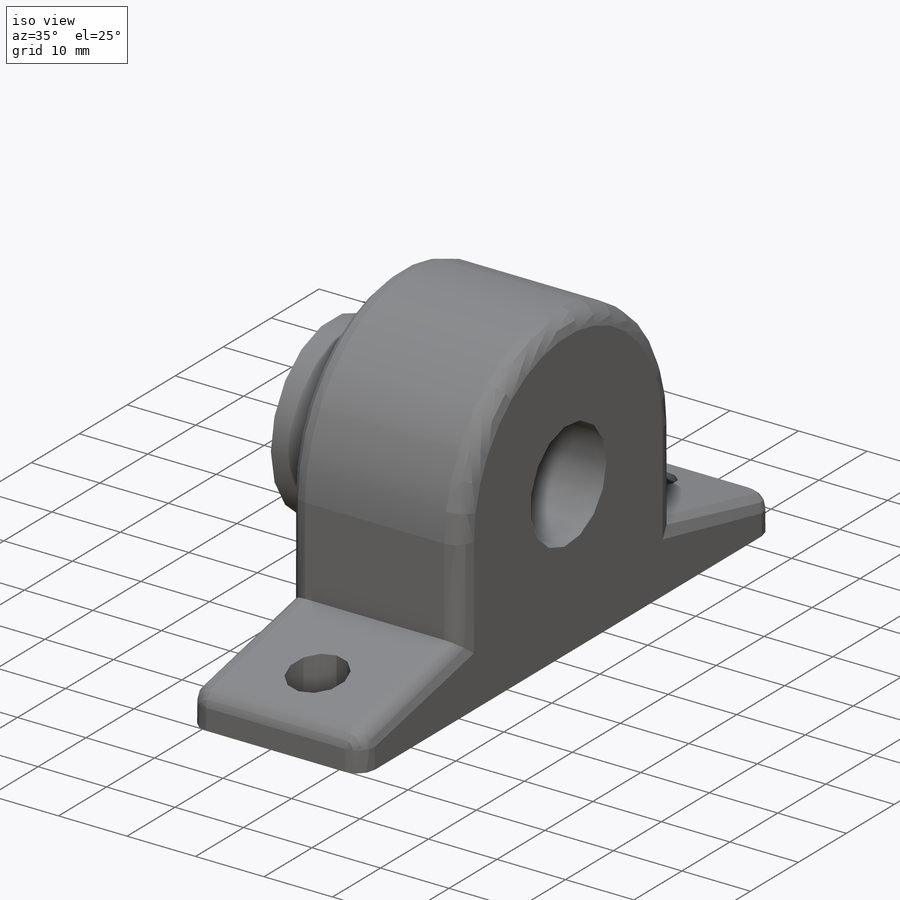
[diagram: iso view]
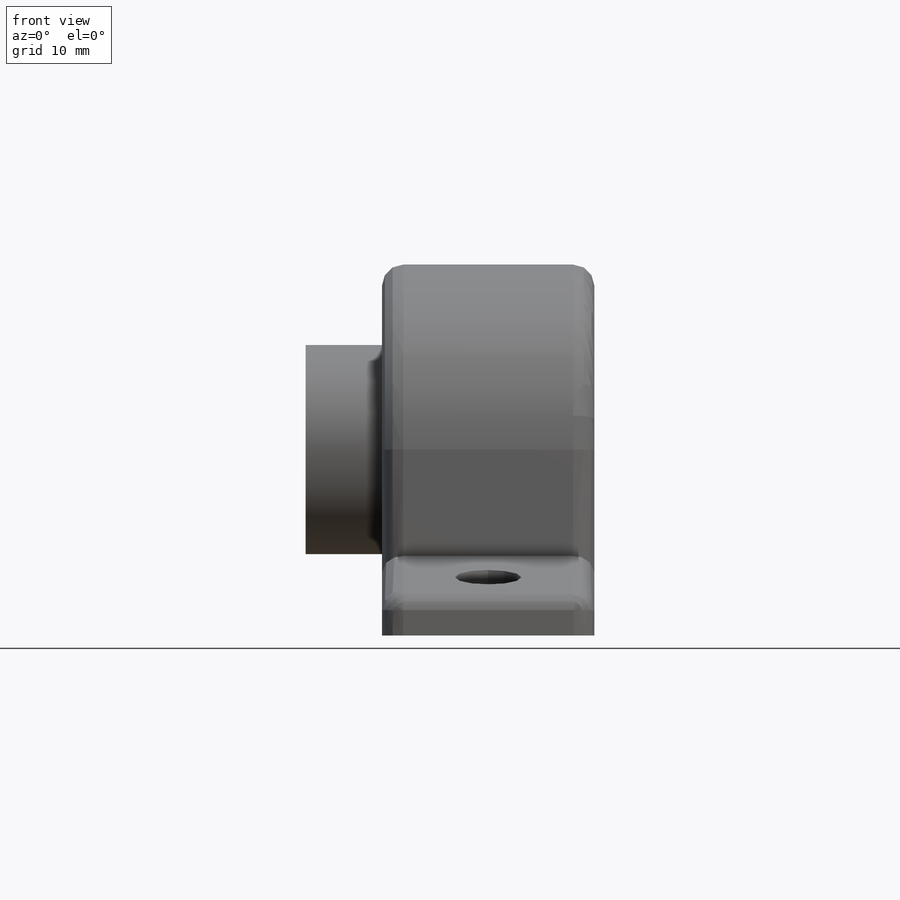
[diagram: front view]
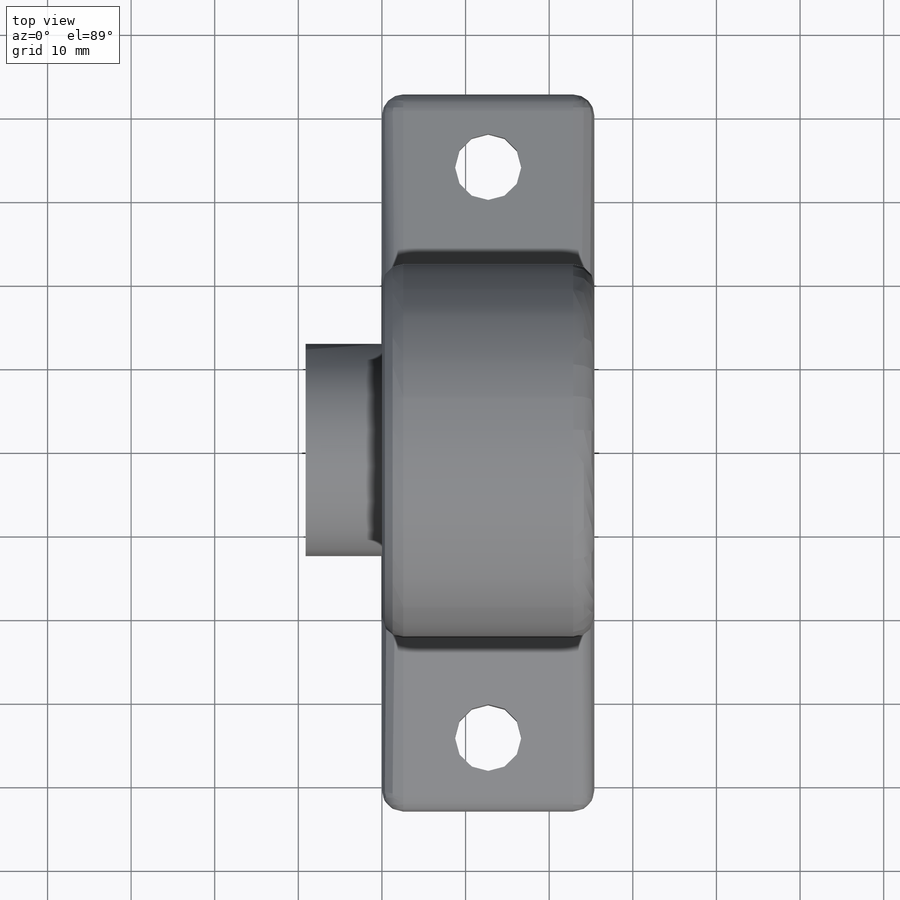
[diagram: top view]
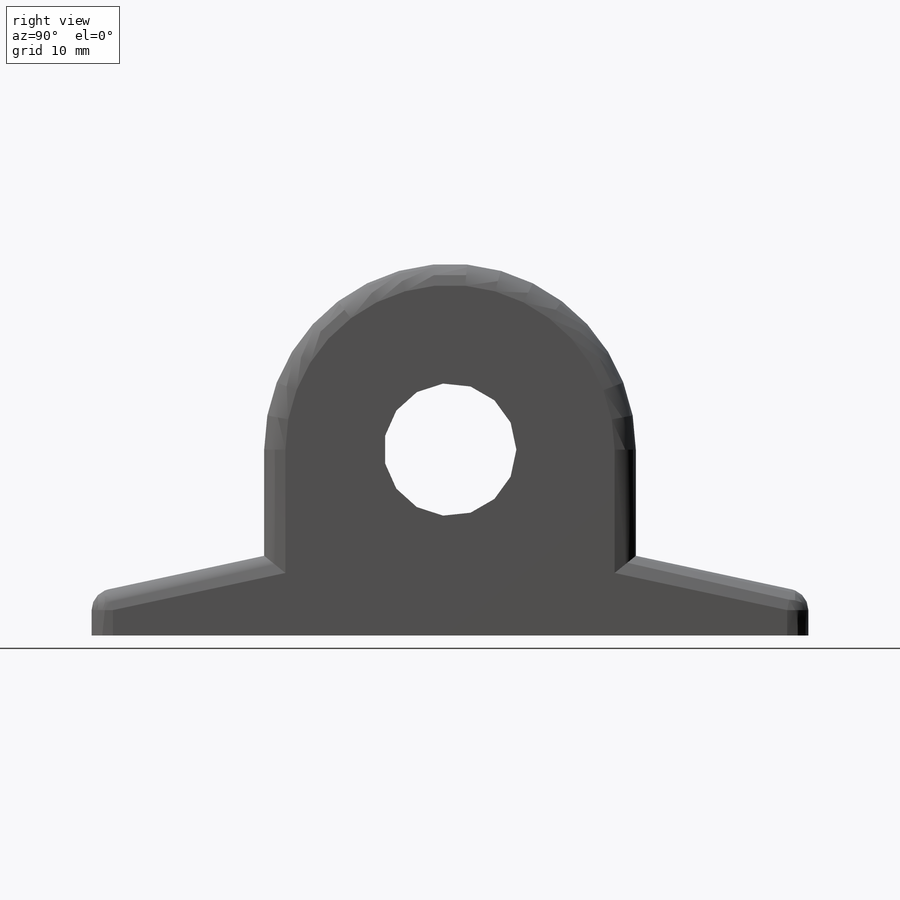
[diagram: right view]
SOLIDWORKS PART (.sldprt)
format: sldprt  version: not decoded by parser v0  size: 351,744 bytes
history: native  units: mm
features: fillet x8, sketch x4, extrude x2, cut_extrude x2, material x1 (+13 scaffold rows collapsed)
feature tree (30):
  scaffold x13  (default folders/planes/origin — collapsed)
  material  "AISI 1020"
  sketch  "Sketch1"  dims[c1.D1=15.875mm c1.D2=22.225mm c1.D3=42.8625mm c1.D4=42.8625mm c2.D3=42.8625mm c2.D4=42.8625mm c2.D5=44.45mm c2.D6=22.225mm c2.D7=22.225mm c2.D1=12.7mm c2.D2=12.7mm c3.D3=5.08mm c3.D4=5.08mm]
  extrude  "Extrude1"  Depth=25.4mm
  sketch  "Sketch2"  dims[D1=15.875mm]
  cut_extrude  "Cut-Extrude1"  Depth=25.4mm
  fillet  "Fillet1"  Radius=2.54mm
  fillet  "Fillet2"  Radius=2.54mm
  fillet  "Fillet3"  Radius=2.54mm
  fillet  "Fillet4"  Radius=2.54mm
  fillet  "Fillet5"  Radius=2.54mm
  fillet  "Fillet6"  Radius=2.54mm
  fillet  "Fillet7"  Radius=2.54mm
  fillet  "Fillet8"  Radius=2.54mm
  sketch  "Sketch3"  dims[c1.D1=7.9375mm c1.D2=7.9375mm c1.D3=7.9375mm c1.D4=7.9375mm c2.D1=6.35mm c2.D2=73.025mm c3.D1=11.1125mm c3.D2=63.5mm c4.D1=68.2625mm c4.D2=~34.13125mm]
  cut_extrude  "Cut-Extrude2"  Depth=12.7mm
  sketch  "Sketch4"  dims[D1=15.875mm D2=25.4mm]
  extrude  "Extrude2"  Depth=9.128125mm
decode coverage: 16 of 16 modeling features carry decoded parameters
note: ~ marks probable driven/reference dimensions
note: suppression state not decoded; provenance and decode notes live in map.json
